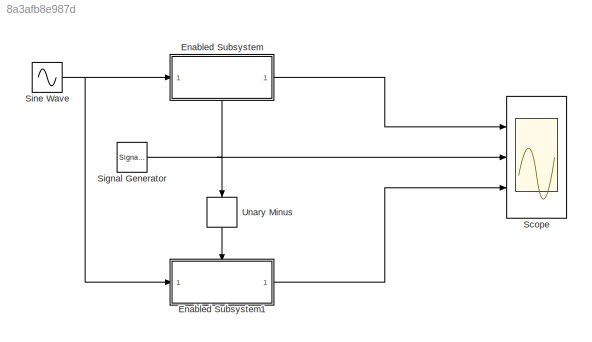
MODEL slx_8a3afb8e987d
KIND model
CONFIG AbsTol = auto
CONFIG EnableMultiTasking = off
CONFIG FixedStep = auto
CONFIG MaxStep = auto
CONFIG MinStep = auto
CONFIG RelTol = 1e-3
CONFIG SampleTimeConstraint = Unconstrained
CONFIG Solver = VariableStepAuto
CONFIG SolverName = VariableStepAuto
CONFIG StartTime = 0.0
CONFIG StopTime = 10.0
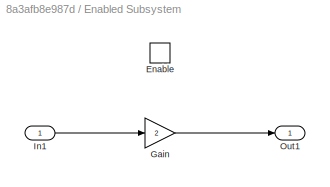
BLOCK [SubSystem] Enabled Subsystem
  Ports = [1, 1, 1]
  RequestExecContextInheritance = off
  TreatAsAtomicUnit = on
BLOCK [EnablePort] Enabled Subsystem/Enable
  Ports = []
  StatesWhenEnabling = reset
BLOCK [Gain] Enabled Subsystem/Gain
  Gain = 2
  OutDataTypeStr = Inherit: Inherit via internal rule
  ParamDataTypeStr = Inherit: Inherit via internal rule
  SaturateOnIntegerOverflow = off
BLOCK [Inport] Enabled Subsystem/In1
  IconDisplay = Port number
BLOCK [Outport] Enabled Subsystem/Out1
  IconDisplay = Port number
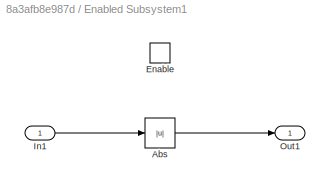
BLOCK [SubSystem] Enabled Subsystem1
  Ports = [1, 1, 1]
  RequestExecContextInheritance = off
  TreatAsAtomicUnit = on
BLOCK [Abs] Enabled Subsystem1/Abs
  SaturateOnIntegerOverflow = off
BLOCK [EnablePort] Enabled Subsystem1/Enable
  Ports = []
BLOCK [Inport] Enabled Subsystem1/In1
  IconDisplay = Port number
BLOCK [Outport] Enabled Subsystem1/Out1
  IconDisplay = Port number
BLOCK [Scope] Scope
  Floating = off
  NumInputPorts = 3
  Ports = [3]
  ScopeSpecificationString = Simulink.scopes.TimeScopeBlockCfg('CurrentConfiguration', extmgr.ConfigurationSet(extmgr.Configuration('Core','General UI',true),extmgr.Configuration('Core','Source UI',true),extmgr.Configuration('Sources','WiredSimulink',true),extmgr.Configuration('Visuals','Time Domain',true,'SerializedDisplays',{struct('MinYLimReal','-2.49956','MaxYLimReal','2.4976','YLabelReal','','MinYLimMag','0.00000','MaxYL...<+2684ch>
BLOCK [SignalGenerator] Signal Generator
  Ports = [0, 1]
  WaveForm = square
BLOCK [Sin] Sine Wave
  Ports = [0, 1]
  SampleTime = 0
BLOCK [UnaryMinus] Unary Minus
LINE Enabled Subsystem/Gain:1 -> Enabled Subsystem/Out1:1
LINE Enabled Subsystem/In1:1 -> Enabled Subsystem/Gain:1
LINE Enabled Subsystem1/Abs:1 -> Enabled Subsystem1/Out1:1
LINE Enabled Subsystem1/In1:1 -> Enabled Subsystem1/Abs:1
LINE Enabled Subsystem1:1 -> Scope:3
LINE Enabled Subsystem:1 -> Scope:1
NET Signal Generator:1 -> Enabled Subsystem:enable, Scope:2, Unary Minus:1
NET Sine Wave:1 -> Enabled Subsystem1:1, Enabled Subsystem:1
LINE Unary Minus:1 -> Enabled Subsystem1:enable
note: NET lines group one-source signal fan-out (src -> all destinations, sorted); 1:1 wires keep LINE
